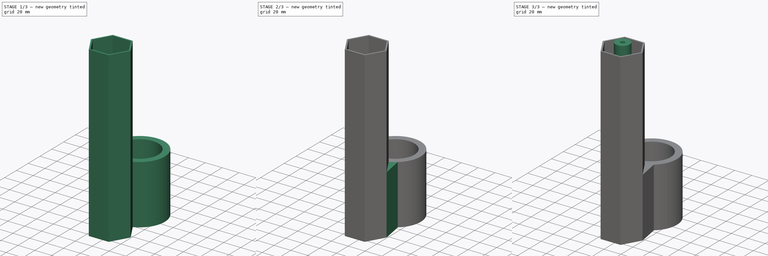
[diagram: build sequence overview — one tinted view per stage of 3, left to right]
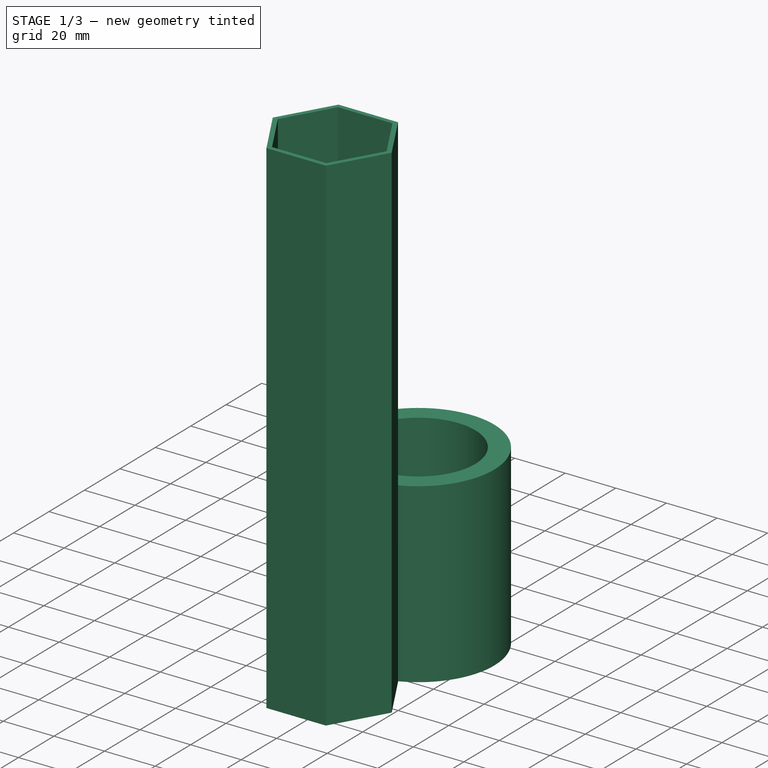
[diagram: stage 1 of 3 — iso view after this stage's code; geometry added in this stage tinted green]
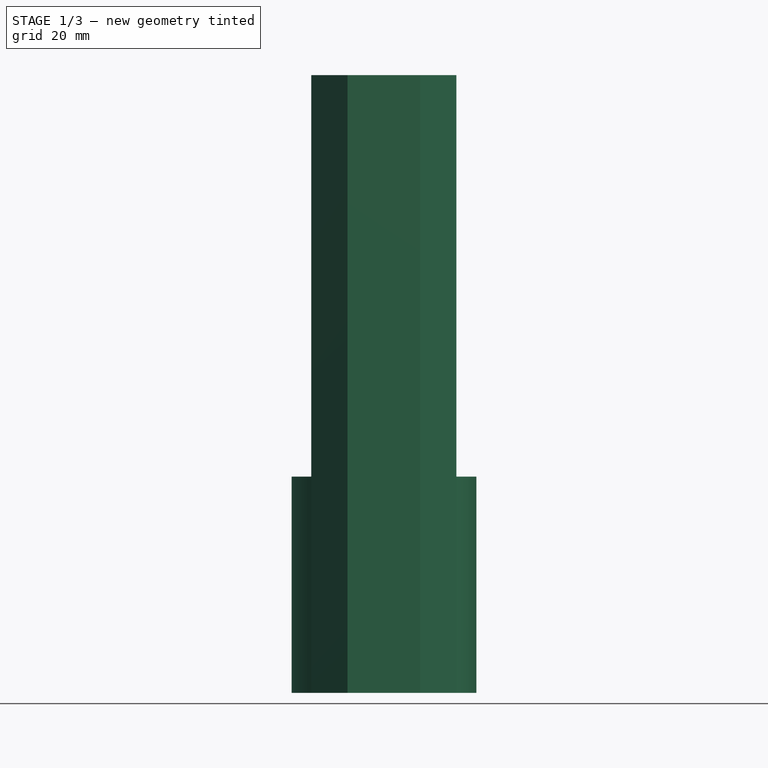
[diagram: stage 1 of 3 — front view after this stage's code; geometry added in this stage tinted green]
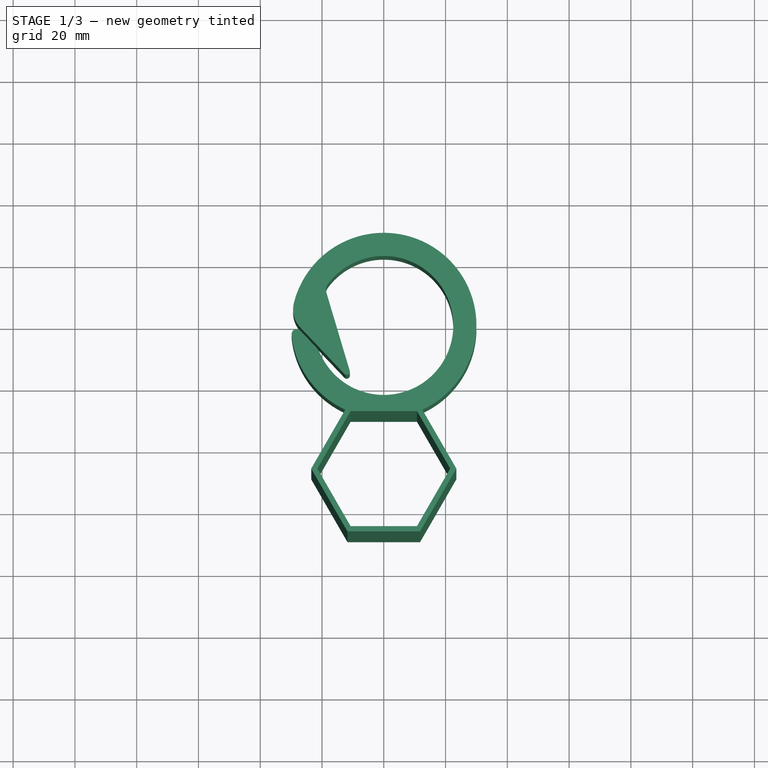
[diagram: stage 1 of 3 — top view after this stage's code; geometry added in this stage tinted green]
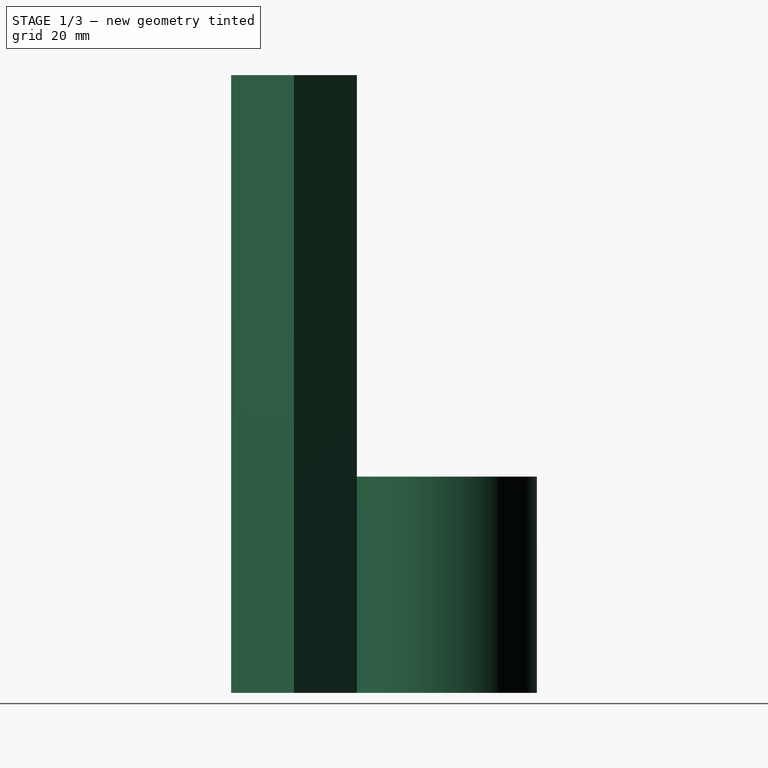
[diagram: stage 1 of 3 — right view after this stage's code; geometry added in this stage tinted green]
FCSTD DOCUMENT  (FreeCAD 0.22R38261 (Git))
Label: отцеп под гайки
License: All rights reserved
LicenseURL: https://en.wikipedia.org/wiki/All_rights_reserved
objects: Sketcher::SketchObject×5, PartDesign::Pad×5, PartDesign::Body×1, App::Part×1
note: 21 computed .brp shape members not serialized (recipe doc carries the construction recipe); baked Part::Feature solids carry a one-line shape summary decoded from their .brp

FEATURE [Sketcher::SketchObject] Sketch
  AttachmentSupport = -> [XY_Plane001]
  FullyConstrained = false
  MapMode = 5
  sketch-geometry (11):
    g0: ArcOfCircle CenterX=0 CenterY=0 CenterZ=0 NormalX=0 NormalY=0 NormalZ=1 AngleXU=0 Radius=30 StartAngle=3.24229 EndAngle=9.17845
    g1: ArcOfCircle CenterX=0 CenterY=0 CenterZ=0 NormalX=0 NormalY=0 NormalZ=1 AngleXU=0 Radius=22.5 StartAngle=3.56645 EndAngle=8.7933
    g2: LineSegment StartX=-22.1738 StartY=-6.7846 StartZ=0 EndX=-26.9916 EndY=-1.7063 EndZ=0
    g3: LineSegment StartX=-26.9916 StartY=-0.706304 StartZ=0 EndX=-12.7398 EndY=-15.7288 EndZ=0
    g4: LineSegment StartX=-11.0087 StartY=-14.727 StartZ=0 EndX=-18.6044 EndY=10.7092 EndZ=0
    g5: ArcOfCircle CenterX=-11.9939 CenterY=-15.0212 CenterZ=0 NormalX=0 NormalY=0 NormalZ=1 AngleXU=0 Radius=1.02813 StartAngle=3.90067 EndAngle=6.57337
    g6: GeomPoint X=-9.77702 Y=-18.8518 Z=0
    g7: ArcOfCircle CenterX=-28.1961 CenterY=-2.84903 CenterZ=0 NormalX=0 NormalY=0 NormalZ=1 AngleXU=0 Radius=1.66033 StartAngle=0.759078 EndAngle=3.24229
    g8: ArcOfCircle CenterX=-20.7481 CenterY=5.21686 CenterZ=0 NormalX=0 NormalY=0 NormalZ=1 AngleXU=0 Radius=8.60608 StartAngle=2.89526 EndAngle=3.90067
    g9: ArcOfCircle CenterX=-15.791 CenterY=11.5493 CenterZ=0 NormalX=0 NormalY=0 NormalZ=1 AngleXU=0 Radius=2.93617 StartAngle=2.51011 EndAngle=3.43178
    g10: ArcOfCircle CenterX=-28.7167 CenterY=-12.9919 CenterZ=0 NormalX=0 NormalY=0 NormalZ=1 AngleXU=0 Radius=9.01889 StartAngle=0.42486 EndAngle=0.759078
  constraints (22):
    c: Coincident(g1,g-1)
    c: Coincident(g0,g1)
    c: Diameter(g0) = 60
    c: Diameter(g1) = 45  'rvnutr'
    c: PointOnObject(g6,g3)
    c: PointOnObject(g6,g4)
    c: Tangent(g3,g5) = -1.5708
    c: Tangent(g4,g5) = -1.5708
    c: Tangent(g2,g7) = -1.5708
    c: Tangent(g0,g7) = -1.5708
    c: Tangent(g3,g8) = -1.5708
    c: Tangent(g0,g8) = -1.5708
    c: Distance(g2,g3) = 1
    c: Parallel(g2,g3)
    c: Vertical(g2,g3)
    c: Tangent(g4,g9) = 1.5708
    c: Tangent(g1,g9) = -1.5708
    c: Tangent(g2,g10) = -1.5708
    c: Tangent(g1,g10) = 1.5708
    c: Distance(g3,g4) = 2
    c: Distance(g2) = 7
    c: Distance(g2,g3) = 13
FEATURE [PartDesign::Pad] Pad
  Direction = (0,0,1)
  Length = 70
  Length2 = 10
  Profile = -> Sketch
  ReferenceAxis = -> Sketch [N_Axis]
  Suppressed = false
  Type = 0
FEATURE [Sketcher::SketchObject] Sketch001
  AttachmentSupport = -> [XY_Plane001]
  ExternalGeometry = -> [Pad]
  FullyConstrained = true
  MapMode = 5
  sketch-geometry (15):
    g0: LineSegment StartX=21.5 StartY=-48.6195 StartZ=0 EndX=10.75 EndY=-30 EndZ=0
    g1: LineSegment StartX=10.75 StartY=-30 StartZ=0 EndX=-10.75 EndY=-30 EndZ=0
    g2: LineSegment StartX=-10.75 StartY=-30 StartZ=0 EndX=-21.5 EndY=-48.6195 EndZ=0
    g3: LineSegment StartX=-21.5 StartY=-48.6195 StartZ=0 EndX=-10.75 EndY=-67.2391 EndZ=0
    g4: LineSegment StartX=-10.75 StartY=-67.2391 StartZ=0 EndX=10.75 EndY=-67.2391 EndZ=0
    g5: LineSegment StartX=10.75 StartY=-67.2391 StartZ=0 EndX=21.5 EndY=-48.6195 EndZ=0
    g6: Circle CenterX=1.5e-15 CenterY=-48.6195 CenterZ=0 NormalX=0 NormalY=0 NormalZ=1 AngleXU=0 Radius=21.5
    g7: GeomPoint X=1e-16 Y=-30 Z=0
    g8: LineSegment StartX=23.5 StartY=-48.6195 StartZ=0 EndX=11.75 EndY=-28.2679 EndZ=0
    g9: LineSegment StartX=11.75 StartY=-28.2679 StartZ=0 EndX=-11.75 EndY=-28.2679 EndZ=0
    g10: LineSegment StartX=-11.75 StartY=-28.2679 StartZ=0 EndX=-23.5 EndY=-48.6195 EndZ=0
    g11: LineSegment StartX=-23.5 StartY=-48.6195 StartZ=0 EndX=-11.75 EndY=-68.9711 EndZ=0
    g12: LineSegment StartX=-11.75 StartY=-68.9711 StartZ=0 EndX=11.75 EndY=-68.9711 EndZ=0
    g13: LineSegment StartX=11.75 StartY=-68.9711 StartZ=0 EndX=23.5 EndY=-48.6195 EndZ=0
    g14: Circle CenterX=1.5e-15 CenterY=-48.6195 CenterZ=0 NormalX=0 NormalY=0 NormalZ=1 AngleXU=0 Radius=23.5
  constraints (34):
    c: Coincident(g0,g1)
    c: Coincident(g1,g2)
    c: Coincident(g2,g3)
    c: Coincident(g3,g4)
    c: Coincident(g4,g5)
    c: Coincident(g5,g0)
    c: Equal(g0, g1-g5) x5
    c: PointOnObject(g0,g6)
    c: PointOnObject(g1,g6)
    c: PointOnObject(g2,g6)
    c: PointOnObject(g3,g6)
    c: PointOnObject(g4,g6)
    c: PointOnObject(g5,g6)
    c: Horizontal(g1)
    c: PointOnObject(g7,g-3)
    c: PointOnObject(g7,g-2)
    c: Coincident(g8,g9)
    c: Coincident(g9,g10)
    c: Coincident(g10,g11)
    c: Coincident(g11,g12)
    c: Coincident(g12,g13)
    c: Coincident(g13,g8)
    c: Equal(g8, g9-g13) x5
    c: PointOnObject(g8,g14)
    c: PointOnObject(g9,g14)
    c: PointOnObject(g10,g14)
    c: PointOnObject(g11,g14)
    c: PointOnObject(g12,g14)
    c: PointOnObject(g13,g14)
    c: Coincident(g14,g6)
    c: Symmetric(g1,g0,g7)
    c: Diameter(g6) = 43
    c: Diameter(g14) = 47
    c: Horizontal(g8,g0)
FEATURE [PartDesign::Pad] Pad001
  BaseFeature = -> Pad
  Direction = (0,0,1)
  Length = 200
  Length2 = 10
  Profile = -> Sketch001
  ReferenceAxis = -> Sketch001 [N_Axis]
  Suppressed = false
  Type = 0
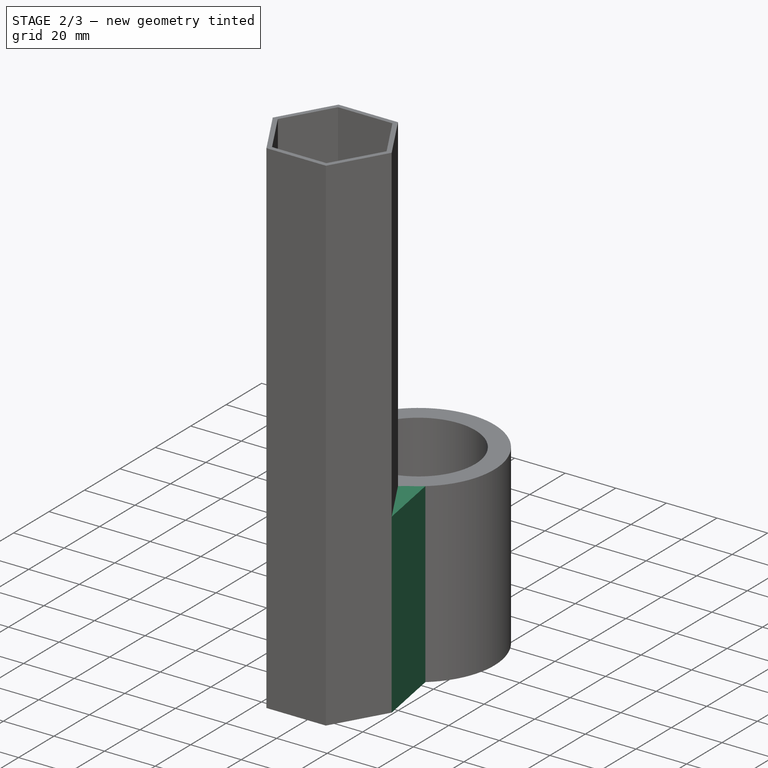
[diagram: stage 2 of 3 — iso view after this stage's code; geometry added in this stage tinted green]
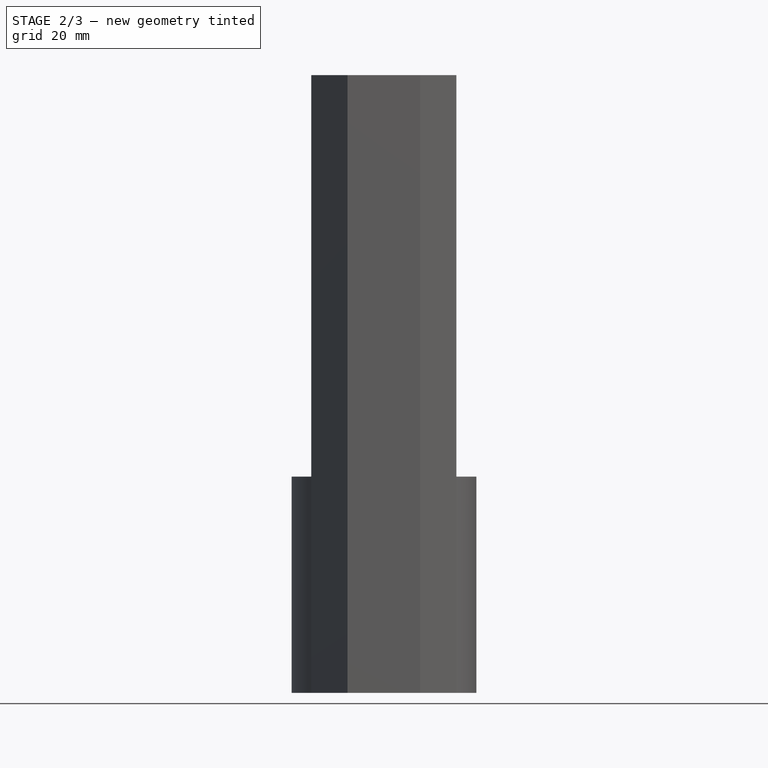
[diagram: stage 2 of 3 — front view after this stage's code; geometry added in this stage tinted green]
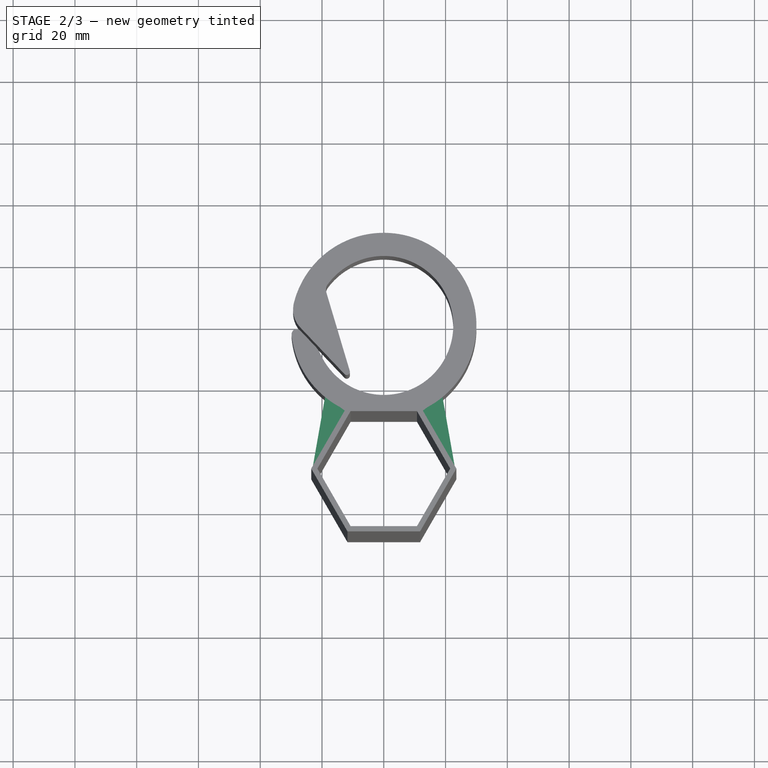
[diagram: stage 2 of 3 — top view after this stage's code; geometry added in this stage tinted green]
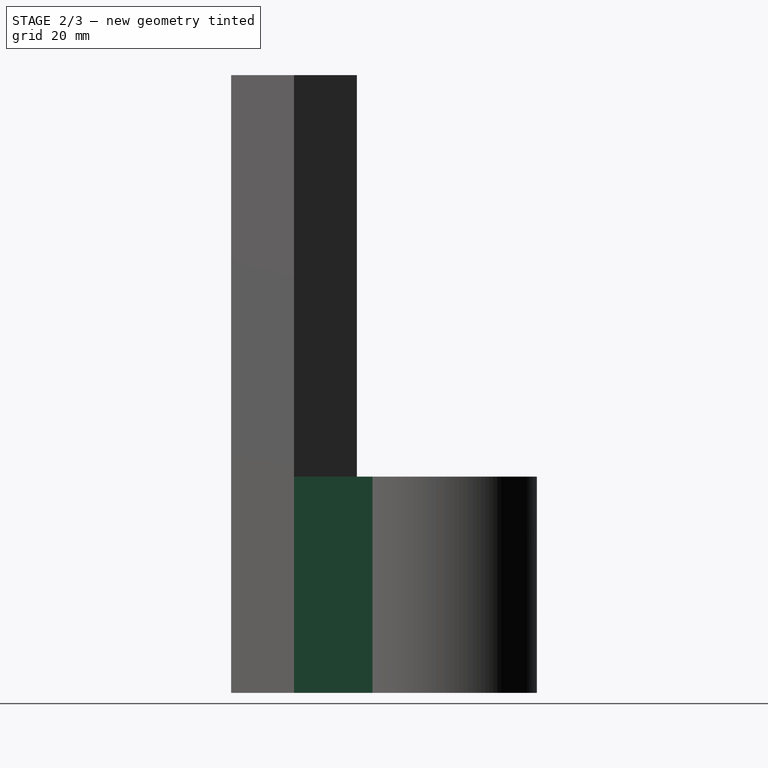
[diagram: stage 2 of 3 — right view after this stage's code; geometry added in this stage tinted green]
FEATURE [Sketcher::SketchObject] Sketch002
  AttachmentSupport = -> [XY_Plane001]
  ExternalGeometry = -> [Pad001]
  FullyConstrained = false
  MapMode = 5
  sketch-geometry (8):
    g0: LineSegment StartX=-18.915 StartY=-22.6167 StartZ=0 EndX=-23.5 EndY=-48.6195 EndZ=0
    g1: LineSegment StartX=23.5 StartY=-48.6195 StartZ=0 EndX=19.0181 EndY=-23.2015 EndZ=0
    g2: LineSegment StartX=19.0181 StartY=-23.2015 StartZ=0 EndX=10.046 EndY=-28.2679 EndZ=0
    g3: LineSegment StartX=10.046 StartY=-28.2679 StartZ=0 EndX=11.75 EndY=-28.2679 EndZ=0
    g4: LineSegment StartX=11.75 StartY=-28.2679 StartZ=0 EndX=23.5 EndY=-48.6195 EndZ=0
    g5: LineSegment StartX=-23.5 StartY=-48.6195 StartZ=0 EndX=-11.75 EndY=-28.2679 EndZ=0
    g6: LineSegment StartX=-11.75 StartY=-28.2679 StartZ=0 EndX=-6.93738 EndY=-28.2679 EndZ=0
    g7: LineSegment StartX=-18.915 StartY=-22.6167 StartZ=0 EndX=-6.93738 EndY=-28.2679 EndZ=0
  constraints (11):
    c: Coincident(g2,g1)
    c: Coincident(g3,g2)
    c: Coincident(g4,g3)
    c: Coincident(g4,g1)
    c: Coincident(g5,g0)
    c: Coincident(g6,g5)
    c: Horizontal(g6)
    c: Coincident(g7,g0)
    c: Coincident(g7,g6)
    c: Angle(g5,g0) = 0.349066
    c: Angle(g1,g4) = 0.349066
FEATURE [PartDesign::Pad] Pad002
  BaseFeature = -> Pad001
  Direction = (0,0,1)
  Length = 70
  Length2 = 10
  Profile = -> Sketch002
  ReferenceAxis = -> Sketch002 [N_Axis]
  Suppressed = false
  Type = 0
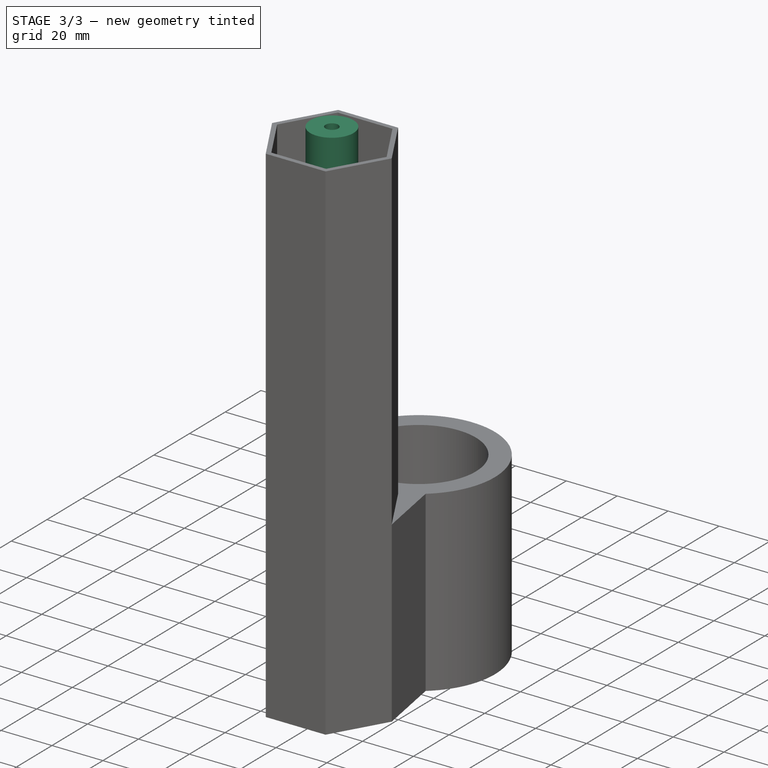
[diagram: stage 3 of 3 — iso view after this stage's code; geometry added in this stage tinted green]
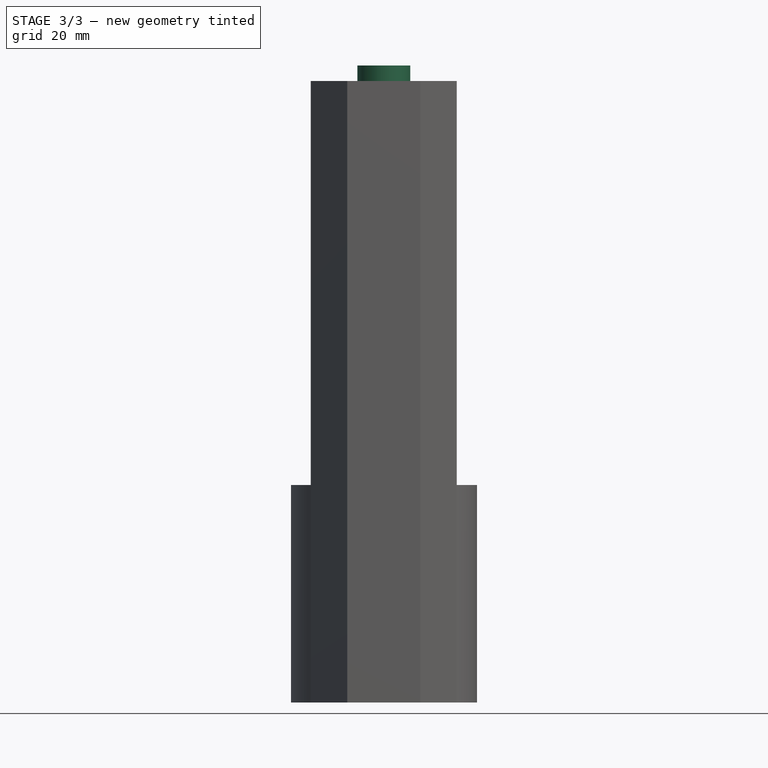
[diagram: stage 3 of 3 — front view after this stage's code; geometry added in this stage tinted green]
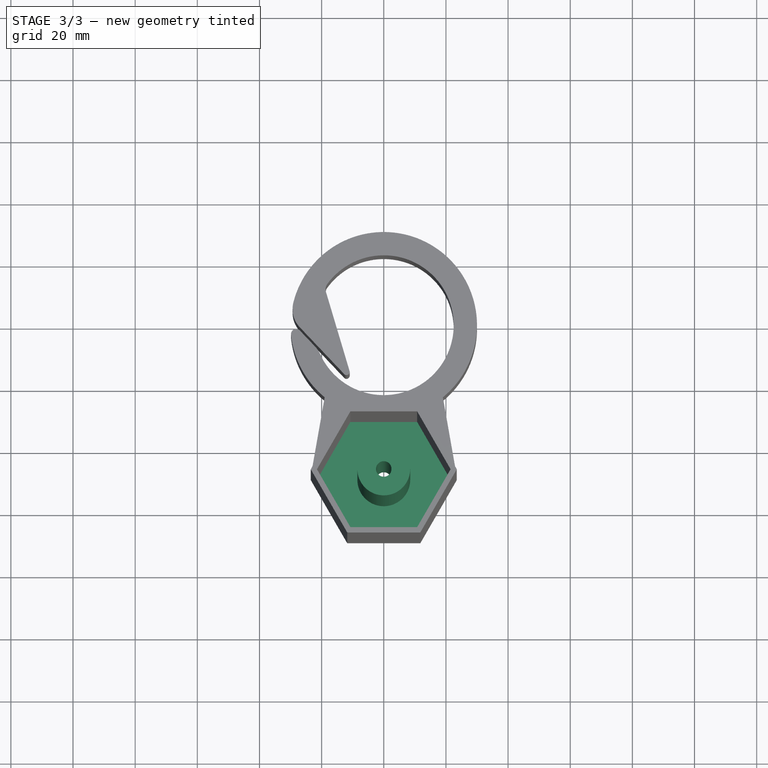
[diagram: stage 3 of 3 — top view after this stage's code; geometry added in this stage tinted green]
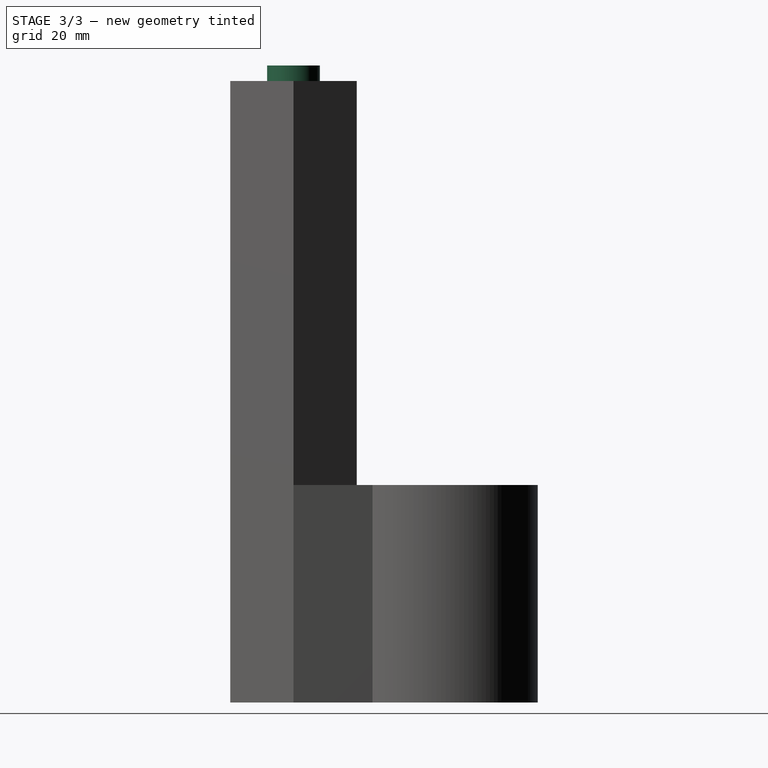
[diagram: stage 3 of 3 — right view after this stage's code; geometry added in this stage tinted green]
FEATURE [Sketcher::SketchObject] Sketch003
  AttachmentSupport = -> [XY_Plane]
  ExternalGeometry = -> [Pad002]
  FullyConstrained = true
  MapMode = 5
  sketch-geometry (8):
    g0: LineSegment StartX=21.5 StartY=-48.6195 StartZ=0 EndX=10.75 EndY=-30 EndZ=0
    g1: LineSegment StartX=10.75 StartY=-30 StartZ=0 EndX=-10.75 EndY=-30 EndZ=0
    g2: LineSegment StartX=-10.75 StartY=-30 StartZ=0 EndX=-21.5 EndY=-48.6195 EndZ=0
    g3: LineSegment StartX=-21.5 StartY=-48.6195 StartZ=0 EndX=-10.75 EndY=-67.2391 EndZ=0
    g4: LineSegment StartX=-10.75 StartY=-67.2391 StartZ=0 EndX=10.75 EndY=-67.2391 EndZ=0
    g5: LineSegment StartX=10.75 StartY=-67.2391 StartZ=0 EndX=21.5 EndY=-48.6195 EndZ=0
    g6: Circle CenterX=0 CenterY=-48.6195 CenterZ=0 NormalX=0 NormalY=0 NormalZ=1 AngleXU=0 Radius=21.5
    g7: Circle CenterX=0 CenterY=-48.6195 CenterZ=0 NormalX=0 NormalY=0 NormalZ=1 AngleXU=0 Radius=2.5
  constraints (17):
    c: Coincident(g0,g1)
    c: Coincident(g1,g2)
    c: Coincident(g2,g3)
    c: Coincident(g3,g4)
    c: Coincident(g4,g5)
    c: Coincident(g5,g0)
    c: Equal(g0, g1-g5) x5
    c: PointOnObject(g0,g6)
    c: PointOnObject(g1,g6)
    c: PointOnObject(g2,g6)
    c: PointOnObject(g3,g6)
    c: PointOnObject(g4,g6)
    c: PointOnObject(g6,g-2)
    c: Coincident(g-4,g0)
    c: Coincident(g1,g-5)
    c: Coincident(g7,g6)
    c: Diameter(g7) = 5
FEATURE [PartDesign::Pad] Pad003
  BaseFeature = -> Pad002
  Direction = (0,0,1)
  Length = 5
  Length2 = 10
  Profile = -> Sketch003
  ReferenceAxis = -> Sketch003 [N_Axis]
  Suppressed = false
  Type = 0
FEATURE [Sketcher::SketchObject] Sketch004
  AttachmentSupport = -> [XY_Plane]
  ExternalGeometry = -> [Pad003]
  FullyConstrained = true
  MapMode = 5
  sketch-geometry (3):
    g0: GeomPoint X=-1.35e-12 Y=-48.6195 Z=0
    g1: Circle CenterX=-1.35e-12 CenterY=-48.6195 CenterZ=0 NormalX=0 NormalY=0 NormalZ=1 AngleXU=0 Radius=2.5
    g2: Circle CenterX=-1.35e-12 CenterY=-48.6195 CenterZ=0 NormalX=0 NormalY=0 NormalZ=1 AngleXU=0 Radius=8.5
  constraints (5):
    c: Symmetric(g-3,g-4,g0)
    c: Coincident(g0,g1)
    c: Diameter(g1) = 5
    c: Coincident(g2,g0)
    c: Diameter(g2) = 17
FEATURE [PartDesign::Pad] Pad004
  BaseFeature = -> Pad003
  Direction = (0,0,1)
  Length = 205
  Length2 = 10
  Profile = -> Sketch004
  ReferenceAxis = -> Sketch004 [N_Axis]
  Suppressed = false
  Type = 0
FEATURE [PartDesign::Body] Body
  AllowCompound = false
  Group = -> [Sketch,Pad,Sketch001,Pad001,Sketch002,Pad002,Sketch003,Pad003,Sketch004,Pad004]
  Origin = -> Origin001
  Tip = -> Pad004
FEATURE [App::Part] Part
  Group = -> [Body]
  Origin = -> Origin
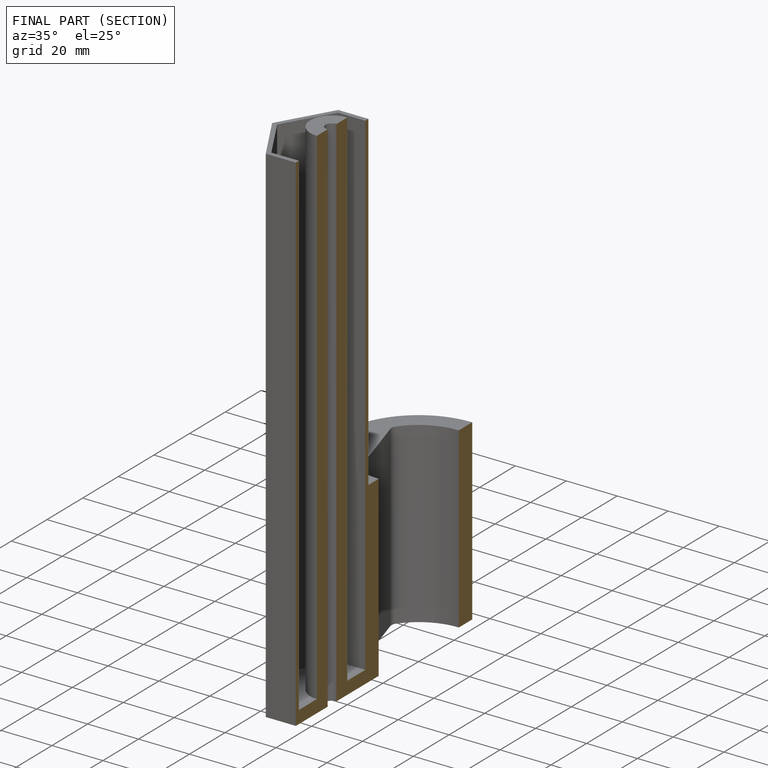
[diagram: finished part — half-section view (interior)]
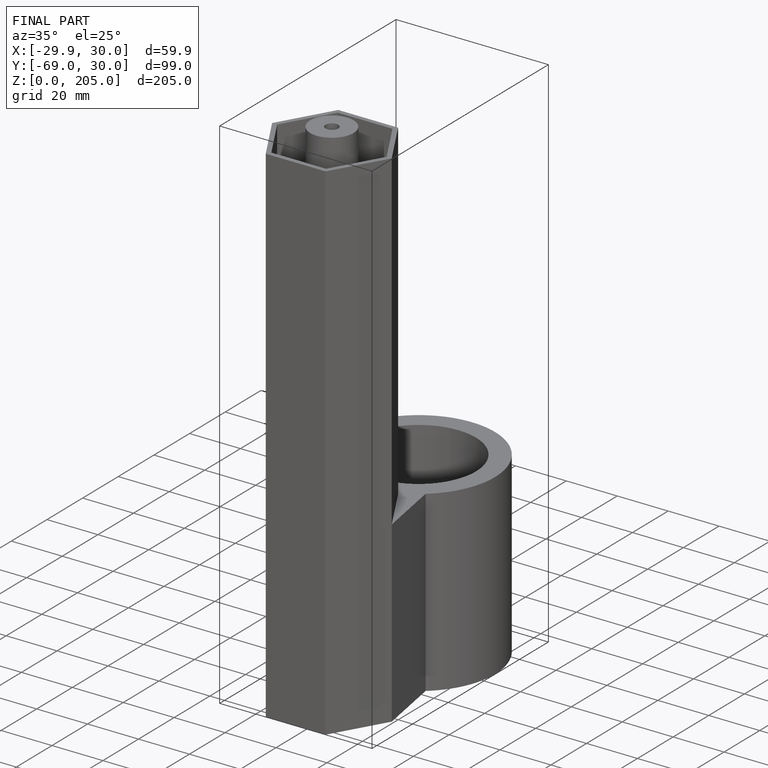
[diagram: finished part — iso view with bounding-box wireframe]
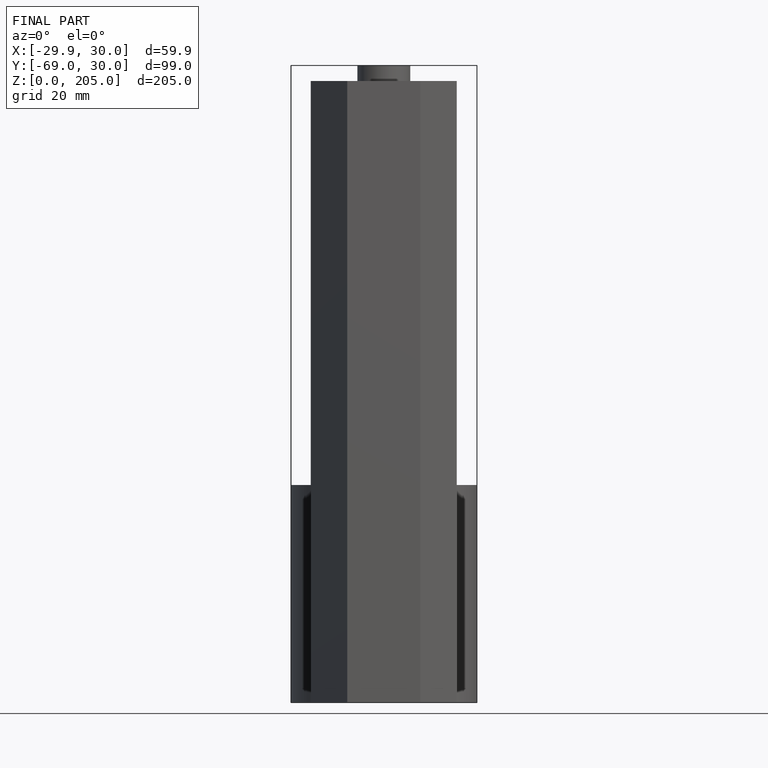
[diagram: finished part — front view with bounding-box wireframe]
